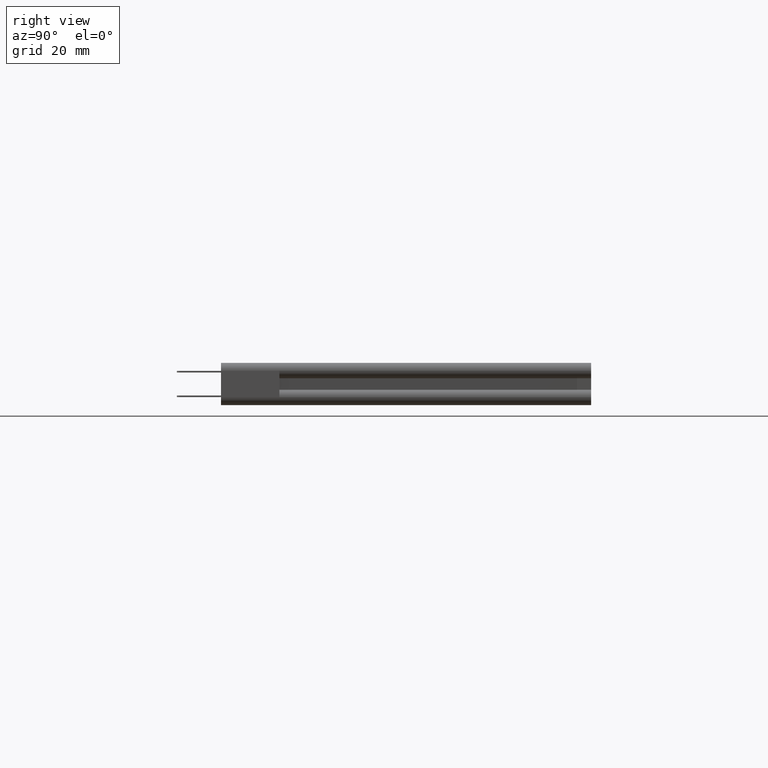
[diagram: clean part render]
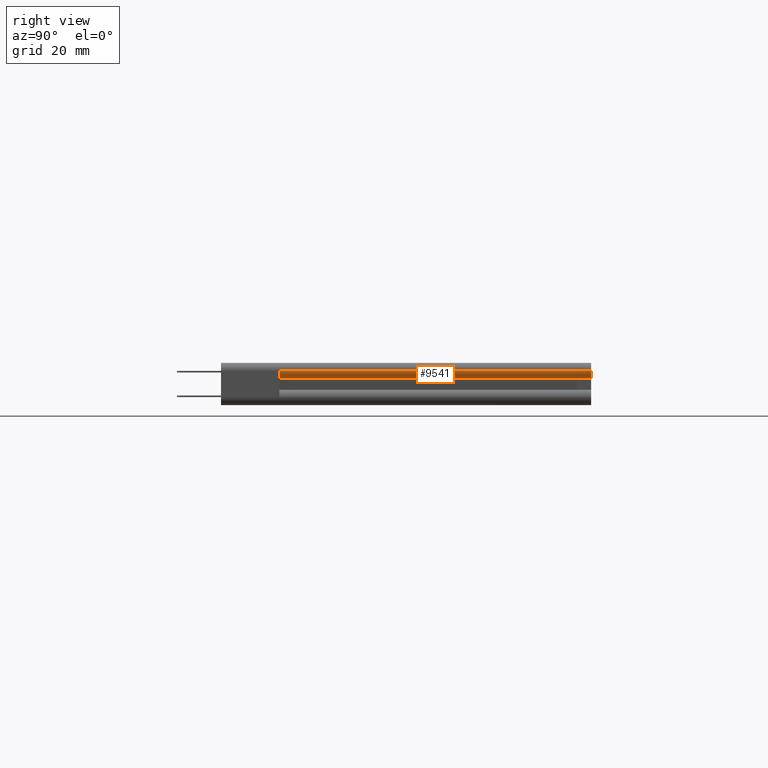
[diagram: same view with one face highlighted and labeled with its STEP entity id]
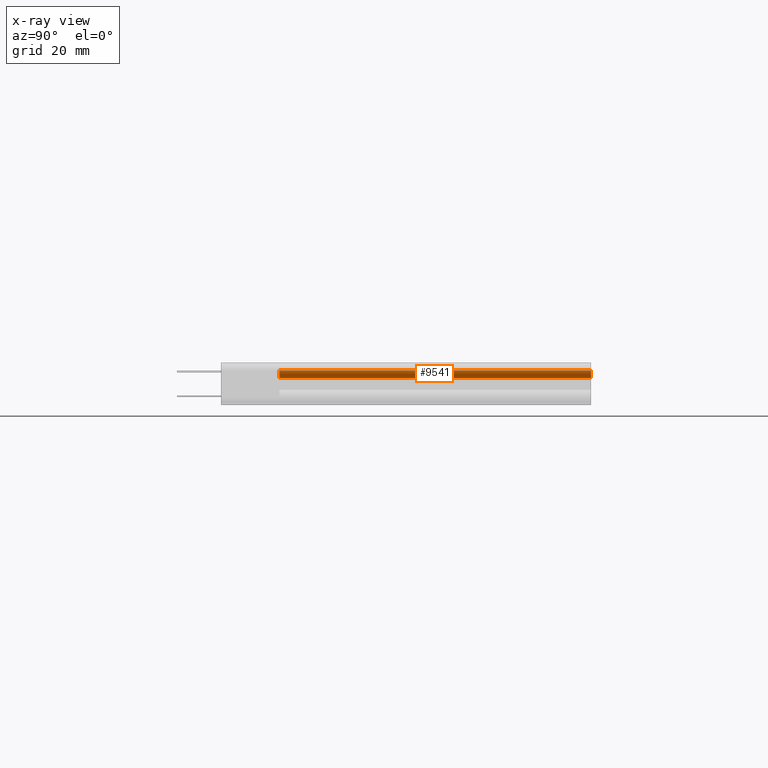
[diagram: x-ray of the same camera — body ghosted, the highlighted face saturated]
A machine part, right view. The second image highlights one B-rep face of the part: STEP entity #9541.
The next image is the same camera in x-ray: the body ghosted, the highlighted face saturated — about 0% of this face is hidden behind the body in this view.
In plain terms, the highlighted cylindrical surface (edge-blend (fillet) strip) has radius 1.6256 mm, axis along (0, -1, 0).
Its self-contained STEP definition (entity closure, byte-faithful):
#221 = AXIS2_PLACEMENT_3D ( 'NONE', #8124, #21367, #2860 ) ;
#437 = CIRCLE ( 'NONE', #4812, 0.06400000000000000100 ) ;
#997 = ORIENTED_EDGE ( 'NONE', *, *, #3031, .F. ) ;
#1247 = DIRECTION ( 'NONE',  ( -0.0000000000000000000, 1.000000000000000000, -0.0000000000000000000 ) ) ;
#1508 = VERTEX_POINT ( 'NONE', #12173 ) ;
#2072 = CARTESIAN_POINT ( 'NONE',  ( 4.830999999999999500, 0.4729999999999994200, 0.04650000000000000000 ) ) ;
#2249 = VERTEX_POINT ( 'NONE', #19357 ) ;
#2860 = DIRECTION ( 'NONE',  ( 0.0000000000000000000, 0.0000000000000000000, -1.000000000000000000 ) ) ;
#3031 = EDGE_CURVE ( 'NONE', #2249, #9131, #8342, .T. ) ;
#3225 = LINE ( 'NONE', #21550, #20519 ) ;
#4226 = DIRECTION ( 'NONE',  ( 0.0000000000000000000, -1.000000000000000000, 0.0000000000000000000 ) ) ;
#4812 = AXIS2_PLACEMENT_3D ( 'NONE', #14377, #4226, #16037 ) ;
#6283 = EDGE_CURVE ( 'NONE', #9131, #1508, #21117, .T. ) ;
#6919 = CARTESIAN_POINT ( 'NONE',  ( 4.875000000000000900, 3.000000000000000400, 0.1072947366142829200 ) ) ;
#7053 = EDGE_LOOP ( 'NONE', ( #20422, #15866, #21805, #997 ) ) ;
#7327 = VERTEX_POINT ( 'NONE', #2072 ) ;
#7497 = AXIS2_PLACEMENT_3D ( 'NONE', #11600, #1247, #13292 ) ;
#7585 = CARTESIAN_POINT ( 'NONE',  ( 4.875000000000000900, 0.0000000000000000000, 0.1072947366142829200 ) ) ;
#7784 = VECTOR ( 'NONE', #12748, 39.37007874015748100 ) ;
#8124 = CARTESIAN_POINT ( 'NONE',  ( 4.811000000000000800, 0.3701165708192027900, 0.1072947366142829200 ) ) ;
#8342 = LINE ( 'NONE', #7585, #7784 ) ;
#9131 = VERTEX_POINT ( 'NONE', #6919 ) ;
#9541 = ADVANCED_FACE ( 'NONE', ( #10645 ), #9591, .T. ) ;
#9591 = CYLINDRICAL_SURFACE ( 'NONE', #221, 0.06400000000000000100 ) ;
#10050 = DIRECTION ( 'NONE',  ( -0.0000000000000000000, 1.000000000000000000, -0.0000000000000000000 ) ) ;
#10645 = FACE_OUTER_BOUND ( 'NONE', #7053, .T. ) ;
#11600 = CARTESIAN_POINT ( 'NONE',  ( 4.811000000000000800, 3.000000000000000400, 0.1072947366142829200 ) ) ;
#12173 = CARTESIAN_POINT ( 'NONE',  ( 4.830999999999999500, 3.000000000000000400, 0.04650000000000000000 ) ) ;
#12748 = DIRECTION ( 'NONE',  ( -0.0000000000000000000, 1.000000000000000000, -0.0000000000000000000 ) ) ;
#13292 = DIRECTION ( 'NONE',  ( 0.0000000000000000000, 0.0000000000000000000, -1.000000000000000000 ) ) ;
#14377 = CARTESIAN_POINT ( 'NONE',  ( 4.811000000000000800, 0.4729999999999994200, 0.1072947366142829200 ) ) ;
#15866 = ORIENTED_EDGE ( 'NONE', *, *, #19859, .T. ) ;
#16037 = DIRECTION ( 'NONE',  ( 0.0000000000000000000, 0.0000000000000000000, -1.000000000000000000 ) ) ;
#19357 = CARTESIAN_POINT ( 'NONE',  ( 4.875000000000000000, 0.4729999999999994200, 0.1072947366142829200 ) ) ;
#19541 = EDGE_CURVE ( 'NONE', #7327, #2249, #437, .T. ) ;
#19859 = EDGE_CURVE ( 'NONE', #7327, #1508, #3225, .T. ) ;
#20422 = ORIENTED_EDGE ( 'NONE', *, *, #19541, .F. ) ;
#20519 = VECTOR ( 'NONE', #10050, 39.37007874015748100 ) ;
#21117 = CIRCLE ( 'NONE', #7497, 0.06400000000000000100 ) ;
#21367 = DIRECTION ( 'NONE',  ( 0.0000000000000000000, -1.000000000000000000, 0.0000000000000000000 ) ) ;
#21550 = CARTESIAN_POINT ( 'NONE',  ( 4.830999999999999500, 0.3701165708192027900, 0.04650000000000000000 ) ) ;
#21805 = ORIENTED_EDGE ( 'NONE', *, *, #6283, .F. ) ;